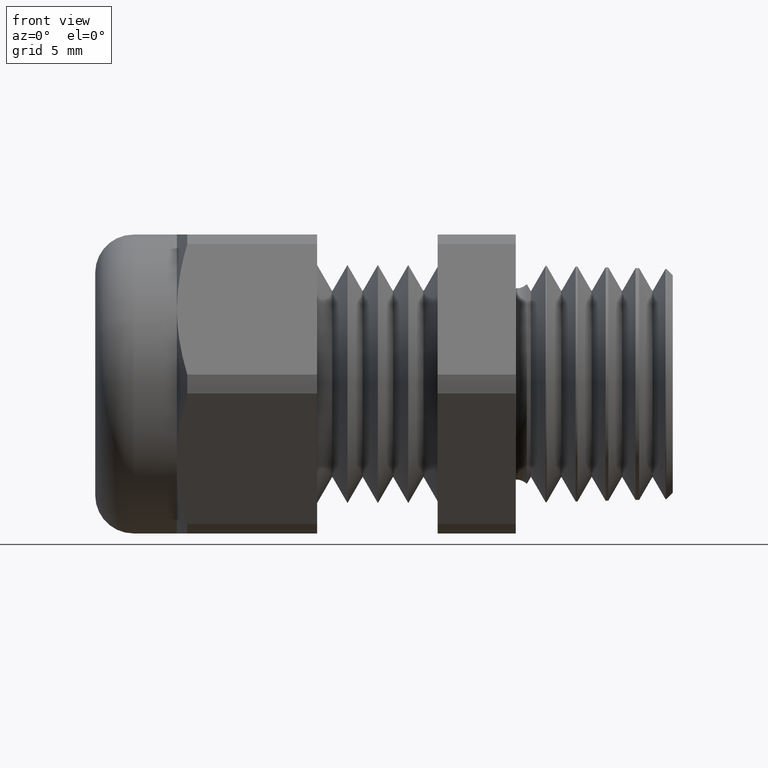
[diagram: clean part render]
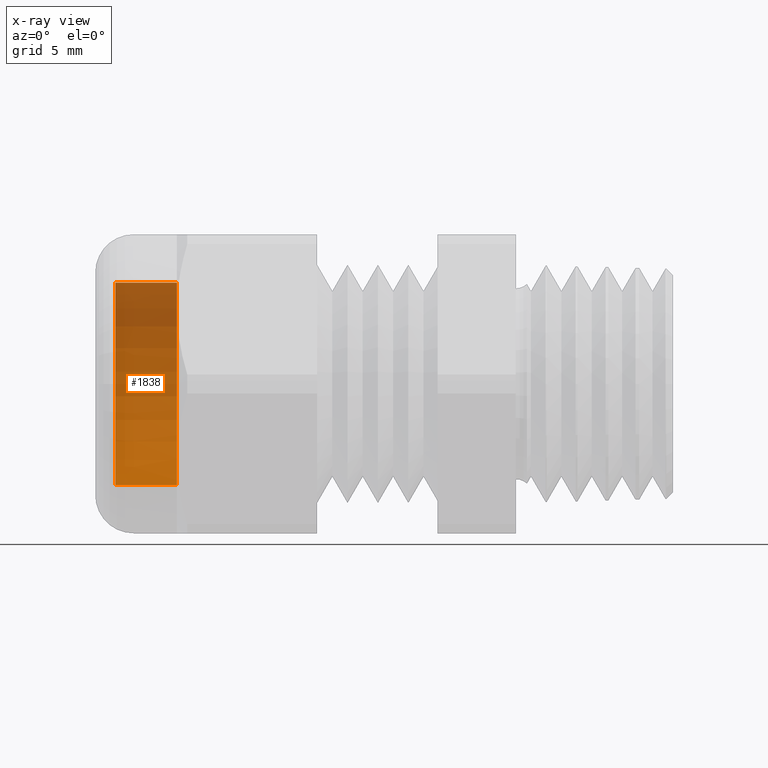
[diagram: x-ray — body ghosted, one internal face saturated and labeled with its STEP entity id]
A machine part, front view, then the same camera in x-ray: the body is ghosted and one INTERNAL B-rep face — a face not visible from any outside direction — is saturated and labeled: STEP entity #1838.
In plain terms, the highlighted cylindrical surface (partial cylindrical patch) has radius 5.0737 mm, axis along (1, 0, 0).
Its self-contained STEP definition (entity closure, byte-faithful):
#166 = DIRECTION ( 'NONE',  ( 1.000000000000000000, 0.0000000000000000000, 0.0000000000000000000 ) ) ;
#167 = VECTOR ( 'NONE', #166, 39.37007874015748100 ) ;
#168 = CARTESIAN_POINT ( 'NONE',  ( 0.3423310023310022200, 0.0000000000000000000, -0.1997500000000001800 ) ) ;
#169 = LINE ( 'NONE', #168, #167 ) ;
#197 = CARTESIAN_POINT ( 'NONE',  ( -0.6687499999999998400, 0.0000000000000000000, -0.1997500000000000900 ) ) ;
#198 = DIRECTION ( 'NONE',  ( 0.0000000000000000000, 0.0000000000000000000, -1.000000000000000000 ) ) ;
#199 = DIRECTION ( 'NONE',  ( 1.000000000000000000, 0.0000000000000000000, 0.0000000000000000000 ) ) ;
#200 = CARTESIAN_POINT ( 'NONE',  ( -0.6687499999999998400, 0.0000000000000000000, 0.0000000000000000000 ) ) ;
#201 = AXIS2_PLACEMENT_3D ( 'NONE', #200, #199, #198 ) ;
#202 = CIRCLE ( 'NONE', #201, 0.1997500000000000900 ) ;
#224 = FACE_OUTER_BOUND ( 'NONE', #1839, .T. ) ;
#230 = DIRECTION ( 'NONE',  ( 0.0000000000000000000, 0.0000000000000000000, -1.000000000000000000 ) ) ;
#231 = DIRECTION ( 'NONE',  ( 1.000000000000000000, 0.0000000000000000000, 0.0000000000000000000 ) ) ;
#232 = CARTESIAN_POINT ( 'NONE',  ( -0.7900000000000001500, 0.0000000000000000000, 0.0000000000000000000 ) ) ;
#233 = AXIS2_PLACEMENT_3D ( 'NONE', #232, #231, #230 ) ;
#234 = CIRCLE ( 'NONE', #233, 0.1997500000000002300 ) ;
#280 = CARTESIAN_POINT ( 'NONE',  ( -0.6687499999999998400, 2.446231981296839700E-017, 0.1997500000000000900 ) ) ;
#281 = DIRECTION ( 'NONE',  ( 1.000000000000000000, 0.0000000000000000000, 0.0000000000000000000 ) ) ;
#282 = VECTOR ( 'NONE', #281, 39.37007874015748100 ) ;
#283 = CARTESIAN_POINT ( 'NONE',  ( 0.3423310023310022200, 2.446231981296840000E-017, 0.1997500000000001800 ) ) ;
#284 = LINE ( 'NONE', #283, #282 ) ;
#1583 = DIRECTION ( 'NONE',  ( 0.0000000000000000000, 0.0000000000000000000, -1.000000000000000000 ) ) ;
#1584 = DIRECTION ( 'NONE',  ( 1.000000000000000000, 0.0000000000000000000, 0.0000000000000000000 ) ) ;
#1593 = CYLINDRICAL_SURFACE ( 'NONE', #1597, 0.1997500000000001800 ) ;
#1594 = CARTESIAN_POINT ( 'NONE',  ( 0.3423310023310022200, 0.0000000000000000000, 0.0000000000000000000 ) ) ;
#1597 = AXIS2_PLACEMENT_3D ( 'NONE', #1594, #1584, #1583 ) ;
#1801 = EDGE_CURVE ( 'NONE', #1981, #1819, #169, .T. ) ;
#1817 = ORIENTED_EDGE ( 'NONE', *, *, #1818, .F. ) ;
#1818 = EDGE_CURVE ( 'NONE', #1819, #1843, #202, .T. ) ;
#1819 = VERTEX_POINT ( 'NONE', #197 ) ;
#1820 = ORIENTED_EDGE ( 'NONE', *, *, #1801, .F. ) ;
#1835 = EDGE_CURVE ( 'NONE', #1981, #1980, #234, .T. ) ;
#1838 = ADVANCED_FACE ( 'NONE', ( #224 ), #1593, .T. ) ;
#1839 = EDGE_LOOP ( 'NONE', ( #1840, #1841, #1817, #1820 ) ) ;
#1840 = ORIENTED_EDGE ( 'NONE', *, *, #1835, .T. ) ;
#1841 = ORIENTED_EDGE ( 'NONE', *, *, #1842, .T. ) ;
#1842 = EDGE_CURVE ( 'NONE', #1980, #1843, #284, .T. ) ;
#1843 = VERTEX_POINT ( 'NONE', #280 ) ;
#1980 = VERTEX_POINT ( 'NONE', #2276 ) ;
#1981 = VERTEX_POINT ( 'NONE', #2275 ) ;
#2275 = CARTESIAN_POINT ( 'NONE',  ( -0.7900000000000001500, 0.0000000000000000000, -0.1997500000000002300 ) ) ;
#2276 = CARTESIAN_POINT ( 'NONE',  ( -0.7900000000000001500, 2.446231981296841200E-017, 0.1997500000000002600 ) ) ;